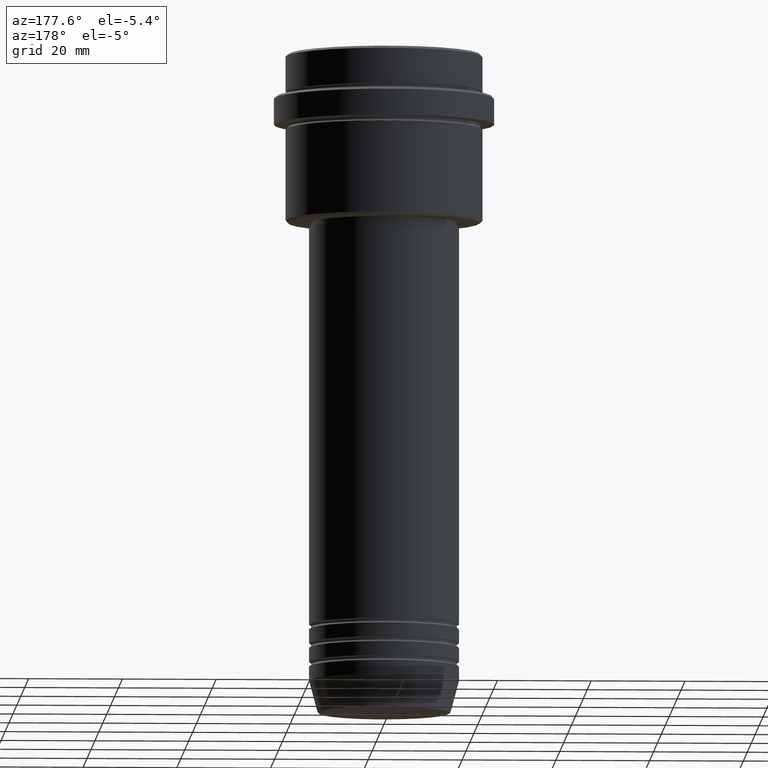
[diagram: clean part render]
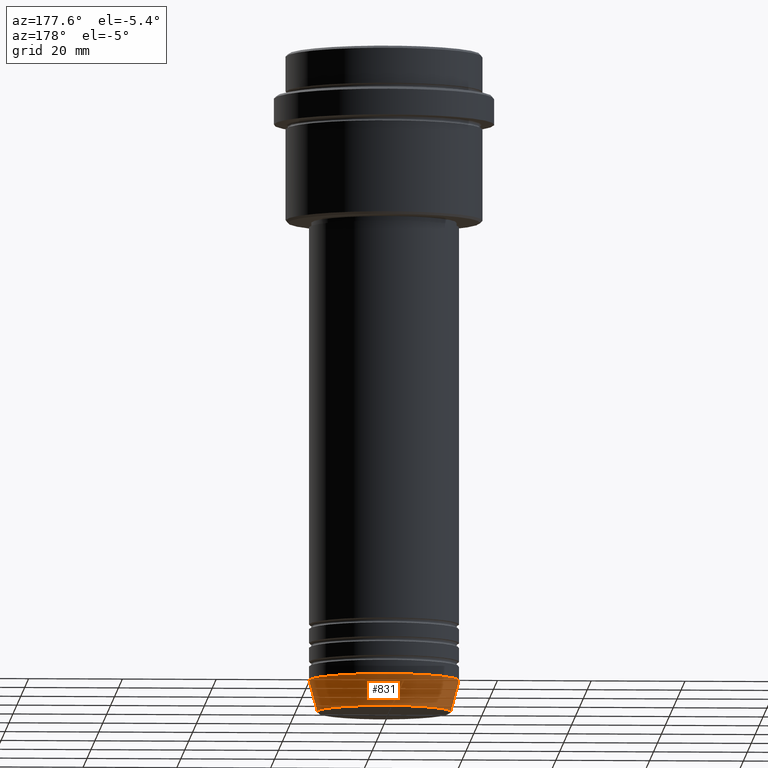
[diagram: same view with one face highlighted and labeled with its STEP entity id]
A machine part, auxiliary view. The second image highlights one B-rep face of the part: STEP entity #831.
In plain terms, the highlighted conical surface has half-angle 15 deg.
Its self-contained STEP definition (entity closure, byte-faithful):
#1 = AXIS2_PLACEMENT_3D ( 'NONE', #568, #1225, #214 ) ;
#2 = CONICAL_SURFACE ( 'NONE', #1, 16.00000000000000000, 0.2617993877991500740 ) ;
#15 = CARTESIAN_POINT ( 'NONE',  ( 14.22365507213718772, 0.000000000000000000, -140.6294095225512422 ) ) ;
#36 = EDGE_LOOP ( 'NONE', ( #652, #1166, #1147, #124 ) ) ;
#68 = DIRECTION ( 'NONE',  ( -0.000000000000000000, -0.000000000000000000, 1.000000000000000000 ) ) ;
#103 = LINE ( 'NONE', #224, #1328 ) ;
#124 = ORIENTED_EDGE ( 'NONE', *, *, #1148, .F. ) ;
#153 = VERTEX_POINT ( 'NONE', #823 ) ;
#214 = DIRECTION ( 'NONE',  ( 1.000000000000000000, 0.000000000000000000, 0.000000000000000000 ) ) ;
#224 = CARTESIAN_POINT ( 'NONE',  ( -16.00000000000000000, 1.959434878635765131E-15, -133.9999999999999716 ) ) ;
#238 = VERTEX_POINT ( 'NONE', #505 ) ;
#292 = CARTESIAN_POINT ( 'NONE',  ( 0.000000000000000000, 0.000000000000000000, -140.6294095225512422 ) ) ;
#300 = LINE ( 'NONE', #973, #539 ) ;
#301 = CARTESIAN_POINT ( 'NONE',  ( 0.000000000000000000, 0.000000000000000000, -133.9999999999999716 ) ) ;
#308 = DIRECTION ( 'NONE',  ( 1.000000000000000000, 0.000000000000000000, 0.000000000000000000 ) ) ;
#377 = VERTEX_POINT ( 'NONE', #1008 ) ;
#463 = CIRCLE ( 'NONE', #1152, 14.22365507213718772 ) ;
#505 = CARTESIAN_POINT ( 'NONE',  ( -14.22365507213718772, 1.850665122131323337E-15, -140.6294095225512422 ) ) ;
#539 = VECTOR ( 'NONE', #748, 1000.000000000000000 ) ;
#568 = CARTESIAN_POINT ( 'NONE',  ( 0.000000000000000000, 0.000000000000000000, -133.9999999999999716 ) ) ;
#612 = VERTEX_POINT ( 'NONE', #15 ) ;
#621 = EDGE_CURVE ( 'NONE', #153, #377, #875, .T. ) ;
#638 = DIRECTION ( 'NONE',  ( -0.000000000000000000, -0.000000000000000000, 1.000000000000000000 ) ) ;
#652 = ORIENTED_EDGE ( 'NONE', *, *, #1101, .T. ) ;
#748 = DIRECTION ( 'NONE',  ( 0.2588190451025213501, 0.000000000000000000, 0.9659258262890680902 ) ) ;
#823 = CARTESIAN_POINT ( 'NONE',  ( 16.00000000000000000, 0.000000000000000000, -133.9999999999999716 ) ) ;
#831 = ADVANCED_FACE ( 'NONE', ( #900 ), #2, .T. ) ;
#875 = CIRCLE ( 'NONE', #1150, 16.00000000000000000 ) ;
#900 = FACE_OUTER_BOUND ( 'NONE', #36, .T. ) ;
#907 = EDGE_CURVE ( 'NONE', #238, #377, #103, .T. ) ;
#973 = CARTESIAN_POINT ( 'NONE',  ( 16.00000000000000000, 0.000000000000000000, -133.9999999999999716 ) ) ;
#1008 = CARTESIAN_POINT ( 'NONE',  ( -16.00000000000000000, 1.959434878635765131E-15, -133.9999999999999716 ) ) ;
#1010 = DIRECTION ( 'NONE',  ( -0.2588190451025213501, 3.169619151431772337E-17, 0.9659258262890680902 ) ) ;
#1101 = EDGE_CURVE ( 'NONE', #612, #238, #463, .T. ) ;
#1147 = ORIENTED_EDGE ( 'NONE', *, *, #621, .F. ) ;
#1148 = EDGE_CURVE ( 'NONE', #612, #153, #300, .T. ) ;
#1150 = AXIS2_PLACEMENT_3D ( 'NONE', #301, #638, #308 ) ;
#1152 = AXIS2_PLACEMENT_3D ( 'NONE', #292, #68, #1291 ) ;
#1166 = ORIENTED_EDGE ( 'NONE', *, *, #907, .T. ) ;
#1225 = DIRECTION ( 'NONE',  ( -0.000000000000000000, -0.000000000000000000, 1.000000000000000000 ) ) ;
#1291 = DIRECTION ( 'NONE',  ( 1.000000000000000000, 0.000000000000000000, 0.000000000000000000 ) ) ;
#1328 = VECTOR ( 'NONE', #1010, 1000.000000000000000 ) ;